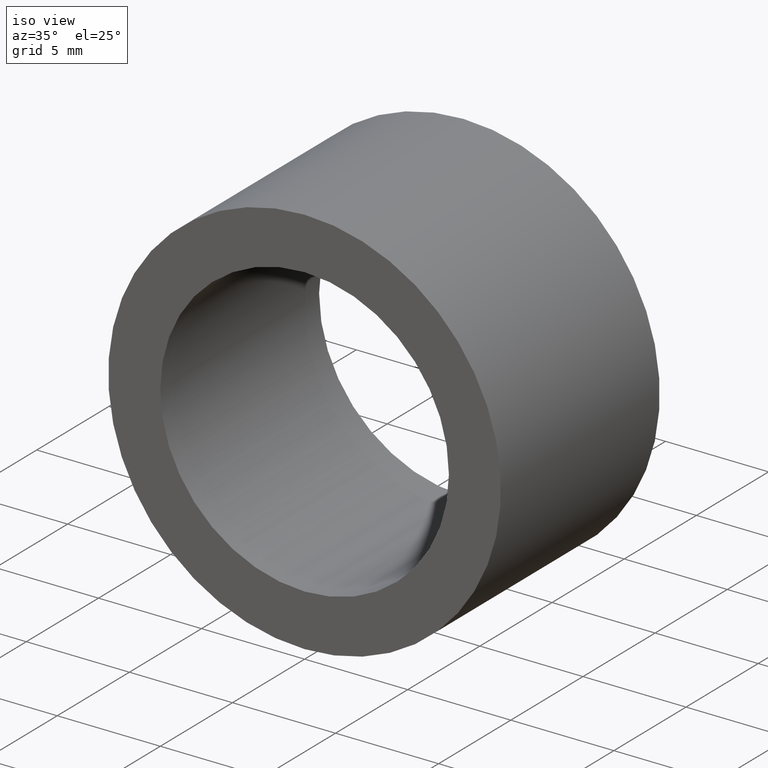
[diagram: clean part render]
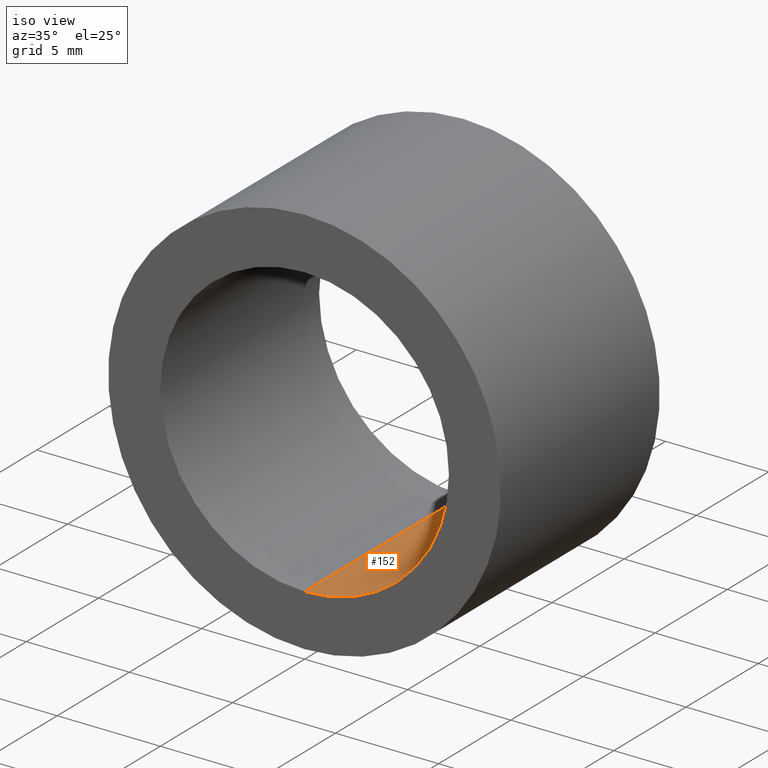
[diagram: same view with one face highlighted and labeled with its STEP entity id]
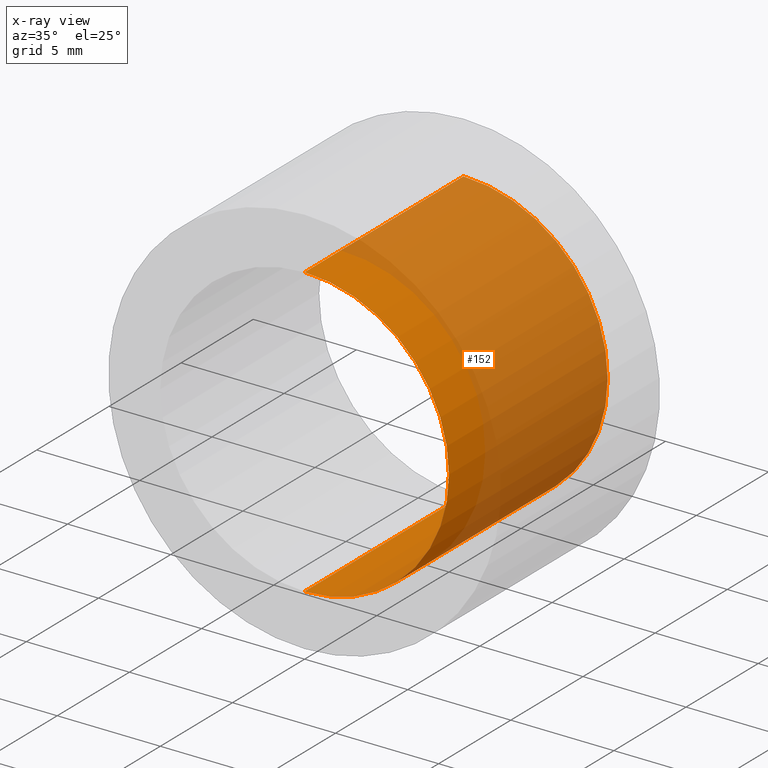
[diagram: x-ray of the same camera — body ghosted, the highlighted face saturated]
A machine part, iso view. The second image highlights one B-rep face of the part: STEP entity #152.
The next image is the same camera in x-ray: the body ghosted, the highlighted face saturated — about 72% of this face is hidden behind the body in this view.
In plain terms, the highlighted cylindrical surface (partial cylindrical patch) has radius 7 mm, axis along (-0, -1, -0).
Its self-contained STEP definition (entity closure, byte-faithful):
#3 = AXIS2_PLACEMENT_3D ( 'NONE', #116, #122, #118 ) ;
#9 = CARTESIAN_POINT ( 'NONE',  ( 0.0000000000000000000, 0.0000000000000000000, -7.000000000000000000 ) ) ;
#13 = CARTESIAN_POINT ( 'NONE',  ( 0.0000000000000000000, 11.00000000000000000, 0.0000000000000000000 ) ) ;
#15 = AXIS2_PLACEMENT_3D ( 'NONE', #73, #213, #218 ) ;
#28 = DIRECTION ( 'NONE',  ( -0.0000000000000000000, -1.000000000000000000, -0.0000000000000000000 ) ) ;
#30 = VERTEX_POINT ( 'NONE', #9 ) ;
#41 = EDGE_CURVE ( 'NONE', #178, #30, #121, .T. ) ;
#55 = DIRECTION ( 'NONE',  ( 0.0000000000000000000, 0.0000000000000000000, 1.000000000000000000 ) ) ;
#66 = ORIENTED_EDGE ( 'NONE', *, *, #82, .F. ) ;
#73 = CARTESIAN_POINT ( 'NONE',  ( 0.0000000000000000000, 0.0000000000000000000, 0.0000000000000000000 ) ) ;
#76 = CARTESIAN_POINT ( 'NONE',  ( 0.0000000000000000000, 11.00000000000000000, -7.000000000000000000 ) ) ;
#82 = EDGE_CURVE ( 'NONE', #99, #30, #232, .T. ) ;
#84 = CARTESIAN_POINT ( 'NONE',  ( 8.572527594031473200E-016, 11.00000000000000000, 7.000000000000000000 ) ) ;
#92 = ORIENTED_EDGE ( 'NONE', *, *, #216, .T. ) ;
#93 = DIRECTION ( 'NONE',  ( -0.0000000000000000000, -1.000000000000000000, -0.0000000000000000000 ) ) ;
#98 = DIRECTION ( 'NONE',  ( 0.0000000000000000000, 1.000000000000000000, 0.0000000000000000000 ) ) ;
#99 = VERTEX_POINT ( 'NONE', #217 ) ;
#107 = VERTEX_POINT ( 'NONE', #237 ) ;
#108 = CIRCLE ( 'NONE', #119, 7.000000000000000000 ) ;
#116 = CARTESIAN_POINT ( 'NONE',  ( 0.0000000000000000000, 11.00000000000000000, 0.0000000000000000000 ) ) ;
#118 = DIRECTION ( 'NONE',  ( 0.0000000000000000000, 0.0000000000000000000, -1.000000000000000000 ) ) ;
#119 = AXIS2_PLACEMENT_3D ( 'NONE', #13, #98, #55 ) ;
#121 = LINE ( 'NONE', #76, #220 ) ;
#122 = DIRECTION ( 'NONE',  ( -0.0000000000000000000, -1.000000000000000000, -0.0000000000000000000 ) ) ;
#124 = LINE ( 'NONE', #84, #154 ) ;
#134 = EDGE_LOOP ( 'NONE', ( #184, #92, #189, #66 ) ) ;
#146 = FACE_OUTER_BOUND ( 'NONE', #134, .T. ) ;
#152 = ADVANCED_FACE ( 'NONE', ( #146 ), #240, .F. ) ;
#154 = VECTOR ( 'NONE', #93, 1000.000000000000000 ) ;
#178 = VERTEX_POINT ( 'NONE', #202 ) ;
#184 = ORIENTED_EDGE ( 'NONE', *, *, #212, .F. ) ;
#189 = ORIENTED_EDGE ( 'NONE', *, *, #41, .T. ) ;
#202 = CARTESIAN_POINT ( 'NONE',  ( 0.0000000000000000000, 11.00000000000000000, -7.000000000000000000 ) ) ;
#212 = EDGE_CURVE ( 'NONE', #107, #99, #124, .T. ) ;
#213 = DIRECTION ( 'NONE',  ( 0.0000000000000000000, 1.000000000000000000, 0.0000000000000000000 ) ) ;
#216 = EDGE_CURVE ( 'NONE', #107, #178, #108, .T. ) ;
#217 = CARTESIAN_POINT ( 'NONE',  ( 8.572527594031473200E-016, 0.0000000000000000000, 7.000000000000000000 ) ) ;
#218 = DIRECTION ( 'NONE',  ( 0.0000000000000000000, 0.0000000000000000000, 1.000000000000000000 ) ) ;
#220 = VECTOR ( 'NONE', #28, 1000.000000000000000 ) ;
#232 = CIRCLE ( 'NONE', #15, 7.000000000000000000 ) ;
#237 = CARTESIAN_POINT ( 'NONE',  ( 8.572527594031473200E-016, 11.00000000000000000, 7.000000000000000000 ) ) ;
#240 = CYLINDRICAL_SURFACE ( 'NONE', #3, 7.000000000000000000 ) ;